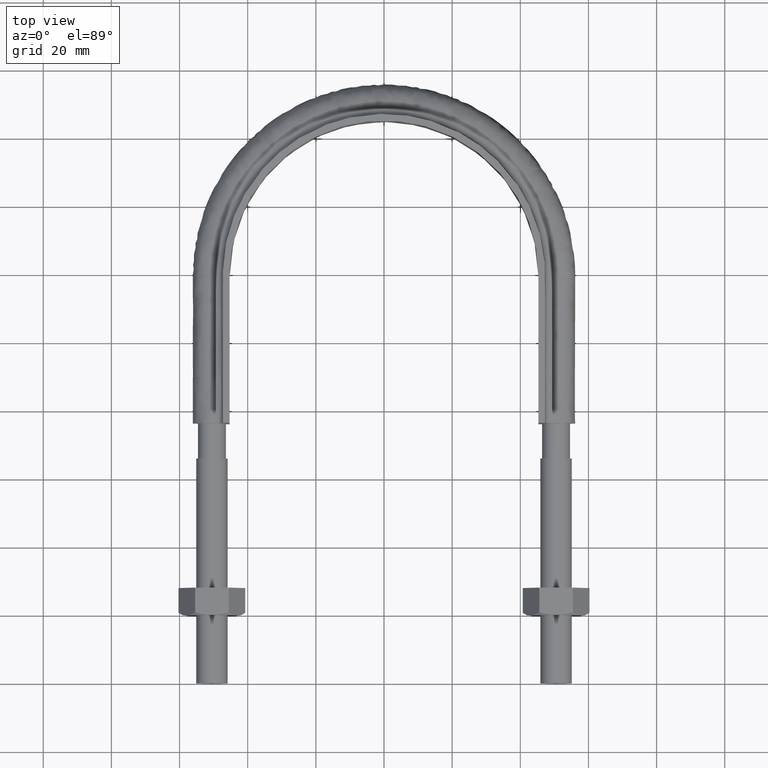
[diagram: clean part render]
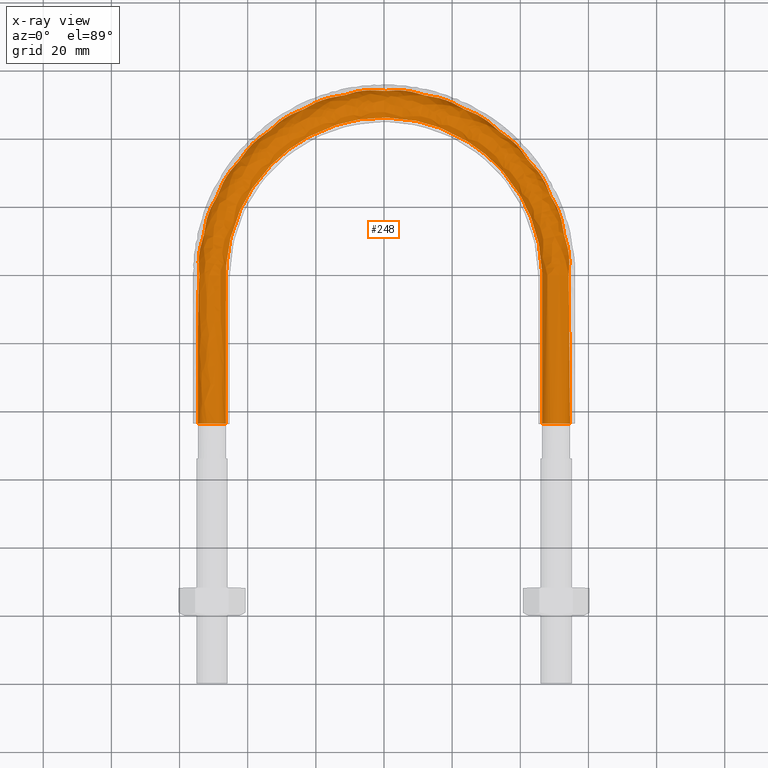
[diagram: x-ray — body ghosted, one internal face saturated and labeled with its STEP entity id]
A machine part, top view, then the same camera in x-ray: the body is ghosted and one INTERNAL B-rep face — a face not visible from any outside direction — is saturated and labeled: STEP entity #248.
In plain terms, the highlighted face is a freeform B-spline surface patch.
Its self-contained STEP definition (entity closure, byte-faithful):
#248 = ADVANCED_FACE( '', ( #363, #364 ), #365, .F. );
#363 = FACE_OUTER_BOUND( '', #1190, .T. );
#364 = FACE_OUTER_BOUND( '', #1191, .T. );
#365 = B_SPLINE_SURFACE_WITH_KNOTS( '', 3, 3, ( ( #1192, #1193, #1194, #1195, #1196, #1197, #1198, #1199, #1200, #1201, #1202, #1203, #1204, #1205, #1206, #1207 ), ( #1208, #1209, #1210, #1211, #1212, #1213, #1214, #1215, #1216, #1217, #1218, #1219, #1220, #1221, #1222, #1223 ), ( #1224, #1225, #1226, #1227, #1228, #1229, #1230, #1231, #1232, #1233, #1234, #1235, #1236, #1237, #1238, #1239 ), ( #1240, #1241, #1242, #1243, #1244, #1245, #1246, #1247, #1248, #1249, #1250, #1251, #1252, #1253, #1254, #1255 ), ( #1256, #1257, #1258, #1259, #1260, #1261, #1262, #1263, #1264, #1265, #1266, #1267, #1268, #1269, #1270, #1271 ), ( #1272, #1273, #1274, #1275, #1276, #1277, #1278, #1279, #1280, #1281, #1282, #1283, #1284, #1285, #1286, #1287 ), ( #1288, #1289, #1290, #1291, #1292, #1293, #1294, #1295, #1296, #1297, #1298, #1299, #1300, #1301, #1302, #1303 ), ( #1304, #1305, #1306, #1307, #1308, #1309, #1310, #1311, #1312, #1313, #1314, #1315, #1316, #1317, #1318, #1319 ), ( #1320, #1321, #1322, #1323, #1324, #1325, #1326, #1327, #1328, #1329, #1330, #1331, #1332, #1333, #1334, #1335 ), ( #1336, #1337, #1338, #1339, #1340, #1341, #1342, #1343, #1344, #1345, #1346, #1347, #1348, #1349, #1350, #1351 ) ), .UNSPECIFIED., .T., .F., .F., ( 2, 1, 1, 1, 1, 1, 1, 1, 1, 1, 1, 2 ), ( 4, 3, 1, 1, 1, 1, 1, 1, 3, 4 ), ( -0.285714285714286, -0.142857142857143, 0.000000000000000, 0.142857142857143, 0.285714285714286, 0.428571428571429, 0.571428571428571, 0.714285714285714, 0.857142857142857, 1.00000000000000, 1.14285714285714, 1.28571428571429 ), ( 0.000000000000000, 1.00000000000000, 2.00000000000000, 3.00000000000000, 4.00000000000000, 5.00000000000000, 6.00000000000000, 7.00000000000000, 8.00000000000000, 9.00000000000000 ), .UNSPECIFIED. );
#1190 = EDGE_LOOP( '', ( #1643 ) );
#1191 = EDGE_LOOP( '', ( #1644 ) );
#1192 = CARTESIAN_POINT( '', ( 47.5768231851220, 73.1000000000000, -3.66554778583225 ) );
#1193 = CARTESIAN_POINT( '', ( 47.5768231851220, 88.6333333333333, -3.66554778583225 ) );
#1194 = CARTESIAN_POINT( '', ( 47.5768231851220, 104.166666666667, -3.66554778583225 ) );
#1195 = CARTESIAN_POINT( '', ( 47.5768231851220, 119.700000000000, -3.66554778583225 ) );
#1196 = CARTESIAN_POINT( '', ( 47.5768231851220, 126.808240896427, -3.66554778583225 ) );
#1197 = CARTESIAN_POINT( '', ( 44.3285383008820, 141.051017216330, -3.66554778583224 ) );
#1198 = CARTESIAN_POINT( '', ( 30.6763003101874, 158.165938031577, -3.66554778583225 ) );
#1199 = CARTESIAN_POINT( '', ( 10.9482448229265, 167.667579869022, -3.66554778583225 ) );
#1200 = CARTESIAN_POINT( '', ( -10.9482448229264, 167.667579869022, -3.66554778583225 ) );
#1201 = CARTESIAN_POINT( '', ( -30.6763003101874, 158.165938031577, -3.66554778583225 ) );
#1202 = CARTESIAN_POINT( '', ( -44.3285383008820, 141.051017216330, -3.66554778583225 ) );
#1203 = CARTESIAN_POINT( '', ( -47.5768231851220, 126.808240896427, -3.66554778583225 ) );
#1204 = CARTESIAN_POINT( '', ( -47.5768231851220, 119.700000000000, -3.66554778583225 ) );
#1205 = CARTESIAN_POINT( '', ( -47.5768231851220, 104.166666666667, -3.66554778583225 ) );
#1206 = CARTESIAN_POINT( '', ( -47.5768231851220, 88.6333333333333, -3.66554778583225 ) );
#1207 = CARTESIAN_POINT( '', ( -47.5768231851220, 73.1000000000000, -3.66554778583225 ) );
#1208 = CARTESIAN_POINT( '', ( 45.8115884074390, 73.1000000000000, 0.000000000000000 ) );
#1209 = CARTESIAN_POINT( '', ( 45.8115884074390, 88.6333333333333, 0.000000000000000 ) );
#1210 = CARTESIAN_POINT( '', ( 45.8115884074390, 104.166666666667, 0.000000000000000 ) );
#1211 = CARTESIAN_POINT( '', ( 45.8115884074390, 119.700000000000, 0.000000000000000 ) );
#1212 = CARTESIAN_POINT( '', ( 45.8115884074390, 126.539638683912, 0.000000000000000 ) );
#1213 = CARTESIAN_POINT( '', ( 42.6838240847164, 140.261089198707, 0.000000000000000 ) );
#1214 = CARTESIAN_POINT( '', ( 29.5381227579056, 156.738149417462, 0.000000000000000 ) );
#1215 = CARTESIAN_POINT( '', ( 10.5420339575894, 165.887965604265, 0.000000000000000 ) );
#1216 = CARTESIAN_POINT( '', ( -10.5420339575893, 165.887965604265, 0.000000000000000 ) );
#1217 = CARTESIAN_POINT( '', ( -29.5381227579055, 156.738149417462, 0.000000000000000 ) );
#1218 = CARTESIAN_POINT( '', ( -42.6838240847164, 140.261089198707, 0.000000000000000 ) );
#1219 = CARTESIAN_POINT( '', ( -45.8115884074390, 126.539638683912, 0.000000000000000 ) );
#1220 = CARTESIAN_POINT( '', ( -45.8115884074390, 119.700000000000, 0.000000000000000 ) );
#1221 = CARTESIAN_POINT( '', ( -45.8115884074390, 104.166666666667, 0.000000000000000 ) );
#1222 = CARTESIAN_POINT( '', ( -45.8115884074390, 88.6333333333333, 0.000000000000000 ) );
#1223 = CARTESIAN_POINT( '', ( -45.8115884074390, 73.1000000000000, 0.000000000000000 ) );
#1224 = CARTESIAN_POINT( '', ( 47.5768231851220, 73.1000000000000, 3.66554778583225 ) );
#1225 = CARTESIAN_POINT( '', ( 47.5768231851220, 88.6333333333333, 3.66554778583225 ) );
#1226 = CARTESIAN_POINT( '', ( 47.5768231851220, 104.166666666667, 3.66554778583225 ) );
#1227 = CARTESIAN_POINT( '', ( 47.5768231851220, 119.700000000000, 3.66554778583225 ) );
#1228 = CARTESIAN_POINT( '', ( 47.5768231851220, 126.808240896427, 3.66554778583225 ) );
#1229 = CARTESIAN_POINT( '', ( 44.3285383008820, 141.051017216330, 3.66554778583224 ) );
#1230 = CARTESIAN_POINT( '', ( 30.6763003101874, 158.165938031577, 3.66554778583225 ) );
#1231 = CARTESIAN_POINT( '', ( 10.9482448229265, 167.667579869022, 3.66554778583225 ) );
#1232 = CARTESIAN_POINT( '', ( -10.9482448229264, 167.667579869022, 3.66554778583225 ) );
#1233 = CARTESIAN_POINT( '', ( -30.6763003101874, 158.165938031577, 3.66554778583225 ) );
#1234 = CARTESIAN_POINT( '', ( -44.3285383008820, 141.051017216330, 3.66554778583225 ) );
#1235 = CARTESIAN_POINT( '', ( -47.5768231851220, 126.808240896427, 3.66554778583225 ) );
#1236 = CARTESIAN_POINT( '', ( -47.5768231851220, 119.700000000000, 3.66554778583225 ) );
#1237 = CARTESIAN_POINT( '', ( -47.5768231851219, 104.166666666667, 3.66554778583225 ) );
#1238 = CARTESIAN_POINT( '', ( -47.5768231851220, 88.6333333333333, 3.66554778583225 ) );
#1239 = CARTESIAN_POINT( '', ( -47.5768231851220, 73.1000000000000, 3.66554778583225 ) );
#1240 = CARTESIAN_POINT( '', ( 51.5432697263483, 73.1000000000000, 4.57086332538454 ) );
#1241 = CARTESIAN_POINT( '', ( 51.5432697263483, 88.6333333333333, 4.57086332538454 ) );
#1242 = CARTESIAN_POINT( '', ( 51.5432697263483, 104.166666666667, 4.57086332538454 ) );
#1243 = CARTESIAN_POINT( '', ( 51.5432697263483, 119.700000000000, 4.57086332538454 ) );
#1244 = CARTESIAN_POINT( '', ( 51.5432697263483, 127.411784589462, 4.57086332538454 ) );
#1245 = CARTESIAN_POINT( '', ( 48.0241775985503, 142.825969360335, 4.57086332538453 ) );
#1246 = CARTESIAN_POINT( '', ( 33.2337620555738, 161.374149925913, 4.57086332538454 ) );
#1247 = CARTESIAN_POINT( '', ( 11.8609923521473, 171.666336824417, 4.57086332538454 ) );
#1248 = CARTESIAN_POINT( '', ( -11.8609923521472, 171.666336824417, 4.57086332538454 ) );
#1249 = CARTESIAN_POINT( '', ( -33.2337620555738, 161.374149925913, 4.57086332538454 ) );
#1250 = CARTESIAN_POINT( '', ( -48.0241775985503, 142.825969360335, 4.57086332538453 ) );
#1251 = CARTESIAN_POINT( '', ( -51.5432697263483, 127.411784589462, 4.57086332538454 ) );
#1252 = CARTESIAN_POINT( '', ( -51.5432697263483, 119.700000000000, 4.57086332538454 ) );
#1253 = CARTESIAN_POINT( '', ( -51.5432697263483, 104.166666666667, 4.57086332538454 ) );
#1254 = CARTESIAN_POINT( '', ( -51.5432697263483, 88.6333333333333, 4.57086332538454 ) );
#1255 = CARTESIAN_POINT( '', ( -51.5432697263483, 73.1000000000000, 4.57086332538454 ) );
#1256 = CARTESIAN_POINT( '', ( 54.7241128848103, 73.1000000000000, 2.03422555230246 ) );
#1257 = CARTESIAN_POINT( '', ( 54.7241128848103, 88.6333333333333, 2.03422555230246 ) );
#1258 = CARTESIAN_POINT( '', ( 54.7241128848103, 104.166666666667, 2.03422555230246 ) );
#1259 = CARTESIAN_POINT( '', ( 54.7241128848103, 119.700000000000, 2.03422555230246 ) );
#1260 = CARTESIAN_POINT( '', ( 54.7241128848103, 127.895789052114, 2.03422555230246 ) );
#1261 = CARTESIAN_POINT( '', ( 50.9878502092738, 144.249370463859, 2.03422555230246 ) );
#1262 = CARTESIAN_POINT( '', ( 35.2846871370765, 163.946936108439, 2.03422555230247 ) );
#1263 = CARTESIAN_POINT( '', ( 12.5929590390921, 174.873090923261, 2.03422555230247 ) );
#1264 = CARTESIAN_POINT( '', ( -12.5929590390920, 174.873090923261, 2.03422555230246 ) );
#1265 = CARTESIAN_POINT( '', ( -35.2846871370765, 163.946936108438, 2.03422555230246 ) );
#1266 = CARTESIAN_POINT( '', ( -50.9878502092738, 144.249370463859, 2.03422555230246 ) );
#1267 = CARTESIAN_POINT( '', ( -54.7241128848102, 127.895789052114, 2.03422555230246 ) );
#1268 = CARTESIAN_POINT( '', ( -54.7241128848102, 119.700000000000, 2.03422555230246 ) );
#1269 = CARTESIAN_POINT( '', ( -54.7241128848102, 104.166666666667, 2.03422555230246 ) );
#1270 = CARTESIAN_POINT( '', ( -54.7241128848102, 88.6333333333333, 2.03422555230246 ) );
#1271 = CARTESIAN_POINT( '', ( -54.7241128848102, 73.1000000000000, 2.03422555230246 ) );
#1272 = CARTESIAN_POINT( '', ( 54.7241128848103, 73.1000000000000, -2.03422555230246 ) );
#1273 = CARTESIAN_POINT( '', ( 54.7241128848103, 88.6333333333333, -2.03422555230246 ) );
#1274 = CARTESIAN_POINT( '', ( 54.7241128848103, 104.166666666667, -2.03422555230246 ) );
#1275 = CARTESIAN_POINT( '', ( 54.7241128848103, 119.700000000000, -2.03422555230246 ) );
#1276 = CARTESIAN_POINT( '', ( 54.7241128848103, 127.895789052114, -2.03422555230246 ) );
#1277 = CARTESIAN_POINT( '', ( 50.9878502092738, 144.249370463859, -2.03422555230246 ) );
#1278 = CARTESIAN_POINT( '', ( 35.2846871370765, 163.946936108439, -2.03422555230246 ) );
#1279 = CARTESIAN_POINT( '', ( 12.5929590390921, 174.873090923261, -2.03422555230246 ) );
#1280 = CARTESIAN_POINT( '', ( -12.5929590390920, 174.873090923261, -2.03422555230246 ) );
#1281 = CARTESIAN_POINT( '', ( -35.2846871370765, 163.946936108438, -2.03422555230246 ) );
#1282 = CARTESIAN_POINT( '', ( -50.9878502092738, 144.249370463859, -2.03422555230246 ) );
#1283 = CARTESIAN_POINT( '', ( -54.7241128848102, 127.895789052114, -2.03422555230246 ) );
#1284 = CARTESIAN_POINT( '', ( -54.7241128848102, 119.700000000000, -2.03422555230246 ) );
#1285 = CARTESIAN_POINT( '', ( -54.7241128848102, 104.166666666667, -2.03422555230246 ) );
#1286 = CARTESIAN_POINT( '', ( -54.7241128848102, 88.6333333333333, -2.03422555230246 ) );
#1287 = CARTESIAN_POINT( '', ( -54.7241128848102, 73.1000000000000, -2.03422555230246 ) );
#1288 = CARTESIAN_POINT( '', ( 51.5432697263483, 73.1000000000000, -4.57086332538454 ) );
#1289 = CARTESIAN_POINT( '', ( 51.5432697263483, 88.6333333333333, -4.57086332538454 ) );
#1290 = CARTESIAN_POINT( '', ( 51.5432697263483, 104.166666666667, -4.57086332538454 ) );
#1291 = CARTESIAN_POINT( '', ( 51.5432697263483, 119.700000000000, -4.57086332538454 ) );
#1292 = CARTESIAN_POINT( '', ( 51.5432697263483, 127.411784589462, -4.57086332538454 ) );
#1293 = CARTESIAN_POINT( '', ( 48.0241775985503, 142.825969360335, -4.57086332538453 ) );
#1294 = CARTESIAN_POINT( '', ( 33.2337620555738, 161.374149925913, -4.57086332538454 ) );
#1295 = CARTESIAN_POINT( '', ( 11.8609923521473, 171.666336824417, -4.57086332538454 ) );
#1296 = CARTESIAN_POINT( '', ( -11.8609923521472, 171.666336824417, -4.57086332538454 ) );
#1297 = CARTESIAN_POINT( '', ( -33.2337620555738, 161.374149925913, -4.57086332538454 ) );
#1298 = CARTESIAN_POINT( '', ( -48.0241775985503, 142.825969360335, -4.57086332538453 ) );
#1299 = CARTESIAN_POINT( '', ( -51.5432697263483, 127.411784589462, -4.57086332538454 ) );
#1300 = CARTESIAN_POINT( '', ( -51.5432697263483, 119.700000000000, -4.57086332538454 ) );
#1301 = CARTESIAN_POINT( '', ( -51.5432697263483, 104.166666666667, -4.57086332538454 ) );
#1302 = CARTESIAN_POINT( '', ( -51.5432697263483, 88.6333333333333, -4.57086332538454 ) );
#1303 = CARTESIAN_POINT( '', ( -51.5432697263483, 73.1000000000000, -4.57086332538454 ) );
#1304 = CARTESIAN_POINT( '', ( 47.5768231851220, 73.1000000000000, -3.66554778583225 ) );
#1305 = CARTESIAN_POINT( '', ( 47.5768231851220, 88.6333333333333, -3.66554778583225 ) );
#1306 = CARTESIAN_POINT( '', ( 47.5768231851220, 104.166666666667, -3.66554778583225 ) );
#1307 = CARTESIAN_POINT( '', ( 47.5768231851220, 119.700000000000, -3.66554778583225 ) );
#1308 = CARTESIAN_POINT( '', ( 47.5768231851220, 126.808240896427, -3.66554778583225 ) );
#1309 = CARTESIAN_POINT( '', ( 44.3285383008820, 141.051017216330, -3.66554778583224 ) );
#1310 = CARTESIAN_POINT( '', ( 30.6763003101874, 158.165938031577, -3.66554778583225 ) );
#1311 = CARTESIAN_POINT( '', ( 10.9482448229265, 167.667579869022, -3.66554778583225 ) );
#1312 = CARTESIAN_POINT( '', ( -10.9482448229264, 167.667579869022, -3.66554778583225 ) );
#1313 = CARTESIAN_POINT( '', ( -30.6763003101874, 158.165938031577, -3.66554778583225 ) );
#1314 = CARTESIAN_POINT( '', ( -44.3285383008820, 141.051017216330, -3.66554778583225 ) );
#1315 = CARTESIAN_POINT( '', ( -47.5768231851220, 126.808240896427, -3.66554778583225 ) );
#1316 = CARTESIAN_POINT( '', ( -47.5768231851220, 119.700000000000, -3.66554778583225 ) );
#1317 = CARTESIAN_POINT( '', ( -47.5768231851220, 104.166666666667, -3.66554778583225 ) );
#1318 = CARTESIAN_POINT( '', ( -47.5768231851220, 88.6333333333333, -3.66554778583225 ) );
#1319 = CARTESIAN_POINT( '', ( -47.5768231851220, 73.1000000000000, -3.66554778583225 ) );
#1320 = CARTESIAN_POINT( '', ( 45.8115884074390, 73.1000000000000, 0.000000000000000 ) );
#1321 = CARTESIAN_POINT( '', ( 45.8115884074390, 88.6333333333333, 0.000000000000000 ) );
#1322 = CARTESIAN_POINT( '', ( 45.8115884074390, 104.166666666667, 0.000000000000000 ) );
#1323 = CARTESIAN_POINT( '', ( 45.8115884074390, 119.700000000000, 0.000000000000000 ) );
#1324 = CARTESIAN_POINT( '', ( 45.8115884074390, 126.539638683912, 0.000000000000000 ) );
#1325 = CARTESIAN_POINT( '', ( 42.6838240847164, 140.261089198707, 0.000000000000000 ) );
#1326 = CARTESIAN_POINT( '', ( 29.5381227579056, 156.738149417462, 0.000000000000000 ) );
#1327 = CARTESIAN_POINT( '', ( 10.5420339575894, 165.887965604265, 0.000000000000000 ) );
#1328 = CARTESIAN_POINT( '', ( -10.5420339575893, 165.887965604265, 0.000000000000000 ) );
#1329 = CARTESIAN_POINT( '', ( -29.5381227579055, 156.738149417462, 0.000000000000000 ) );
#1330 = CARTESIAN_POINT( '', ( -42.6838240847164, 140.261089198707, 0.000000000000000 ) );
#1331 = CARTESIAN_POINT( '', ( -45.8115884074390, 126.539638683912, 0.000000000000000 ) );
#1332 = CARTESIAN_POINT( '', ( -45.8115884074390, 119.700000000000, 0.000000000000000 ) );
#1333 = CARTESIAN_POINT( '', ( -45.8115884074390, 104.166666666667, 0.000000000000000 ) );
#1334 = CARTESIAN_POINT( '', ( -45.8115884074390, 88.6333333333333, 0.000000000000000 ) );
#1335 = CARTESIAN_POINT( '', ( -45.8115884074390, 73.1000000000000, 0.000000000000000 ) );
#1336 = CARTESIAN_POINT( '', ( 47.5768231851220, 73.1000000000000, 3.66554778583225 ) );
#1337 = CARTESIAN_POINT( '', ( 47.5768231851220, 88.6333333333333, 3.66554778583225 ) );
#1338 = CARTESIAN_POINT( '', ( 47.5768231851220, 104.166666666667, 3.66554778583225 ) );
#1339 = CARTESIAN_POINT( '', ( 47.5768231851220, 119.700000000000, 3.66554778583225 ) );
#1340 = CARTESIAN_POINT( '', ( 47.5768231851220, 126.808240896427, 3.66554778583225 ) );
#1341 = CARTESIAN_POINT( '', ( 44.3285383008820, 141.051017216330, 3.66554778583224 ) );
#1342 = CARTESIAN_POINT( '', ( 30.6763003101874, 158.165938031577, 3.66554778583225 ) );
#1343 = CARTESIAN_POINT( '', ( 10.9482448229265, 167.667579869022, 3.66554778583225 ) );
#1344 = CARTESIAN_POINT( '', ( -10.9482448229264, 167.667579869022, 3.66554778583225 ) );
#1345 = CARTESIAN_POINT( '', ( -30.6763003101874, 158.165938031577, 3.66554778583225 ) );
#1346 = CARTESIAN_POINT( '', ( -44.3285383008820, 141.051017216330, 3.66554778583225 ) );
#1347 = CARTESIAN_POINT( '', ( -47.5768231851220, 126.808240896427, 3.66554778583225 ) );
#1348 = CARTESIAN_POINT( '', ( -47.5768231851220, 119.700000000000, 3.66554778583225 ) );
#1349 = CARTESIAN_POINT( '', ( -47.5768231851219, 104.166666666667, 3.66554778583225 ) );
#1350 = CARTESIAN_POINT( '', ( -47.5768231851220, 88.6333333333333, 3.66554778583225 ) );
#1351 = CARTESIAN_POINT( '', ( -47.5768231851220, 73.1000000000000, 3.66554778583225 ) );
#1643 = ORIENTED_EDGE( '', *, *, #2029, .F. );
#1644 = ORIENTED_EDGE( '', *, *, #2037, .F. );
#2029 = EDGE_CURVE( '', #2205, #2205, #2206, .T. );
#2037 = EDGE_CURVE( '', #2218, #2218, #2219, .T. );
#2205 = VERTEX_POINT( '', #2530 );
#2206 = B_SPLINE_CURVE_WITH_KNOTS( '', 3, ( #2531, #2532, #2533, #2534, #2535, #2536, #2537, #2538, #2539, #2540 ), .UNSPECIFIED., .T., .F., ( 4, 1, 1, 1, 1, 1, 1, 4 ), ( 0.000000000000000, 0.00365634574703304, 0.00731269149406608, 0.0109690372410991, 0.0146253829881321, 0.0182817287351652, 0.0219380744821982, 0.0255944202292313 ), .UNSPECIFIED. );
#2218 = VERTEX_POINT( '', #2698 );
#2219 = B_SPLINE_CURVE_WITH_KNOTS( '', 3, ( #2699, #2700, #2701, #2702, #2703, #2704, #2705, #2706, #2707, #2708 ), .UNSPECIFIED., .T., .F., ( 4, 1, 1, 1, 1, 1, 1, 4 ), ( 0.000000000000000, 0.00365634574703310, 0.00731269149406620, 0.0109690372410993, 0.0146253829881324, 0.0182817287351655, 0.0219380744821986, 0.0255944202292317 ), .UNSPECIFIED. );
#2530 = CARTESIAN_POINT( '', ( -46.4000000000000, 76.3000000000000, 1.62630325872826E-016 ) );
#2531 = CARTESIAN_POINT( '', ( -46.4000000000000, 76.3000000000001, 0.000000000000000 ) );
#2532 = CARTESIAN_POINT( '', ( -46.4000000000000, 76.3000000000001, -1.22184926194408 ) );
#2533 = CARTESIAN_POINT( '', ( -47.5768231851220, 76.3000000000001, -3.66554778583225 ) );
#2534 = CARTESIAN_POINT( '', ( -51.5432697263483, 76.3000000000001, -4.57086332538454 ) );
#2535 = CARTESIAN_POINT( '', ( -54.7241128848102, 76.3000000000001, -2.03422555230246 ) );
#2536 = CARTESIAN_POINT( '', ( -54.7241128848102, 76.3000000000001, 2.03422555230246 ) );
#2537 = CARTESIAN_POINT( '', ( -51.5432697263483, 76.3000000000001, 4.57086332538454 ) );
#2538 = CARTESIAN_POINT( '', ( -47.5768231851220, 76.3000000000001, 3.66554778583225 ) );
#2539 = CARTESIAN_POINT( '', ( -46.4000000000000, 76.3000000000001, 1.22184926194408 ) );
#2540 = CARTESIAN_POINT( '', ( -46.4000000000000, 76.3000000000001, 0.000000000000000 ) );
#2698 = CARTESIAN_POINT( '', ( 46.4000000000000, 76.3000000000000, 2.08119732811616E-046 ) );
#2699 = CARTESIAN_POINT( '', ( 46.4000000000000, 76.3000000000000, 0.000000000000000 ) );
#2700 = CARTESIAN_POINT( '', ( 46.4000000000000, 76.3000000000000, 1.22184926194408 ) );
#2701 = CARTESIAN_POINT( '', ( 47.5768231851220, 76.3000000000000, 3.66554778583225 ) );
#2702 = CARTESIAN_POINT( '', ( 51.5432697263483, 76.3000000000000, 4.57086332538454 ) );
#2703 = CARTESIAN_POINT( '', ( 54.7241128848103, 76.3000000000000, 2.03422555230246 ) );
#2704 = CARTESIAN_POINT( '', ( 54.7241128848103, 76.3000000000000, -2.03422555230246 ) );
#2705 = CARTESIAN_POINT( '', ( 51.5432697263483, 76.3000000000000, -4.57086332538454 ) );
#2706 = CARTESIAN_POINT( '', ( 47.5768231851220, 76.3000000000000, -3.66554778583225 ) );
#2707 = CARTESIAN_POINT( '', ( 46.4000000000000, 76.3000000000000, -1.22184926194408 ) );
#2708 = CARTESIAN_POINT( '', ( 46.4000000000000, 76.3000000000000, 0.000000000000000 ) );